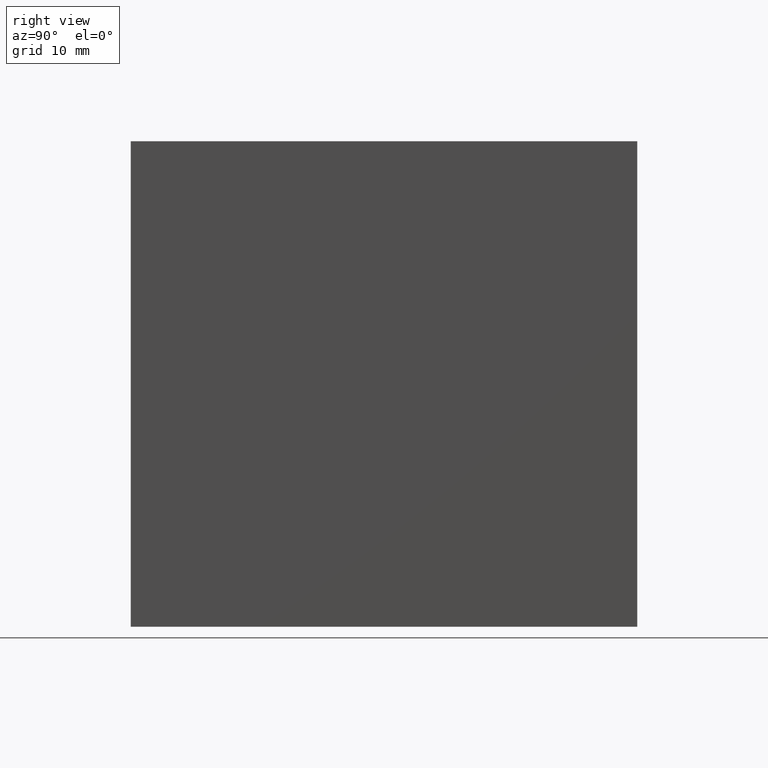
[diagram: clean part render]
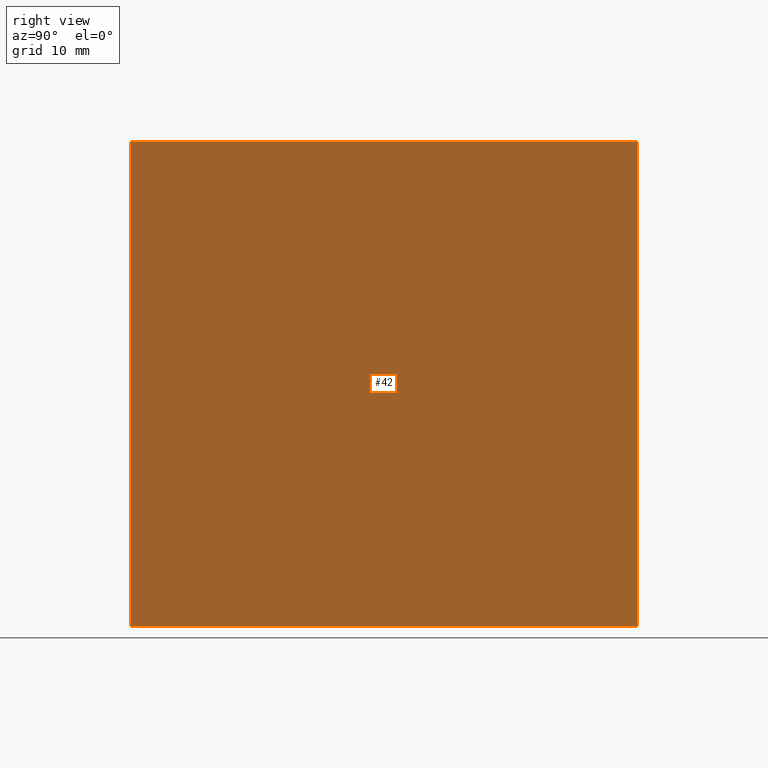
[diagram: same view with one face highlighted and labeled with its STEP entity id]
A machine part, right view. The second image highlights one B-rep face of the part: STEP entity #42.
In plain terms, the highlighted planar face has unit normal (-1, 0, 0).
Its self-contained STEP definition (entity closure, byte-faithful):
#6 = ORIENTED_EDGE ( 'NONE', *, *, #182, .T. ) ;
#7 = VECTOR ( 'NONE', #161, 1000.000000000000000 ) ;
#18 = DIRECTION ( 'NONE',  ( -3.062657711647045300E-016, -0.0000000000000000000, -1.000000000000000000 ) ) ;
#21 = EDGE_CURVE ( 'NONE', #26, #204, #196, .T. ) ;
#26 = VERTEX_POINT ( 'NONE', #50 ) ;
#29 = VECTOR ( 'NONE', #168, 1000.000000000000000 ) ;
#41 = PLANE ( 'NONE',  #120 ) ;
#42 = ADVANCED_FACE ( 'NONE', ( #203 ), #41, .F. ) ;
#46 = LINE ( 'NONE', #112, #7 ) ;
#50 = CARTESIAN_POINT ( 'NONE',  ( -0.3047956651487313000, 53.00000000000000000, 25.39999999999999900 ) ) ;
#55 = DIRECTION ( 'NONE',  ( 3.062657711647045300E-016, 0.0000000000000000000, 1.000000000000000000 ) ) ;
#62 = VERTEX_POINT ( 'NONE', #186 ) ;
#74 = ORIENTED_EDGE ( 'NONE', *, *, #201, .F. ) ;
#75 = CARTESIAN_POINT ( 'NONE',  ( -0.3047956651487468400, 53.00000000000000000, -25.39999999999999900 ) ) ;
#87 = CARTESIAN_POINT ( 'NONE',  ( -0.3047956651487468400, 53.00000000000000000, -25.39999999999999900 ) ) ;
#89 = VECTOR ( 'NONE', #99, 1000.000000000000000 ) ;
#90 = EDGE_LOOP ( 'NONE', ( #187, #74, #198, #6 ) ) ;
#92 = DIRECTION ( 'NONE',  ( -1.000000000000000000, 0.0000000000000000000, 3.062657711647045300E-016 ) ) ;
#94 = LINE ( 'NONE', #169, #89 ) ;
#99 = DIRECTION ( 'NONE',  ( -3.062657711647045300E-016, -0.0000000000000000000, -1.000000000000000000 ) ) ;
#103 = CARTESIAN_POINT ( 'NONE',  ( -0.3047956651487468400, 0.0000000000000000000, -25.39999999999999900 ) ) ;
#110 = CARTESIAN_POINT ( 'NONE',  ( -0.3047956651487468400, 53.00000000000000000, -25.39999999999999900 ) ) ;
#112 = CARTESIAN_POINT ( 'NONE',  ( -0.3047956651487468400, 53.00000000000000000, -25.39999999999999900 ) ) ;
#114 = EDGE_CURVE ( 'NONE', #62, #142, #94, .T. ) ;
#117 = VECTOR ( 'NONE', #18, 1000.000000000000000 ) ;
#120 = AXIS2_PLACEMENT_3D ( 'NONE', #87, #92, #55 ) ;
#127 = CARTESIAN_POINT ( 'NONE',  ( -0.3047956651487313000, 53.00000000000000000, 25.39999999999999900 ) ) ;
#142 = VERTEX_POINT ( 'NONE', #103 ) ;
#151 = LINE ( 'NONE', #127, #29 ) ;
#161 = DIRECTION ( 'NONE',  ( -0.0000000000000000000, -1.000000000000000000, -0.0000000000000000000 ) ) ;
#168 = DIRECTION ( 'NONE',  ( -0.0000000000000000000, -1.000000000000000000, -0.0000000000000000000 ) ) ;
#169 = CARTESIAN_POINT ( 'NONE',  ( -0.3047956651487468400, 0.0000000000000000000, -25.39999999999999900 ) ) ;
#182 = EDGE_CURVE ( 'NONE', #26, #62, #151, .T. ) ;
#186 = CARTESIAN_POINT ( 'NONE',  ( -0.3047956651487313000, 0.0000000000000000000, 25.39999999999999900 ) ) ;
#187 = ORIENTED_EDGE ( 'NONE', *, *, #114, .T. ) ;
#196 = LINE ( 'NONE', #75, #117 ) ;
#198 = ORIENTED_EDGE ( 'NONE', *, *, #21, .F. ) ;
#201 = EDGE_CURVE ( 'NONE', #204, #142, #46, .T. ) ;
#203 = FACE_OUTER_BOUND ( 'NONE', #90, .T. ) ;
#204 = VERTEX_POINT ( 'NONE', #110 ) ;